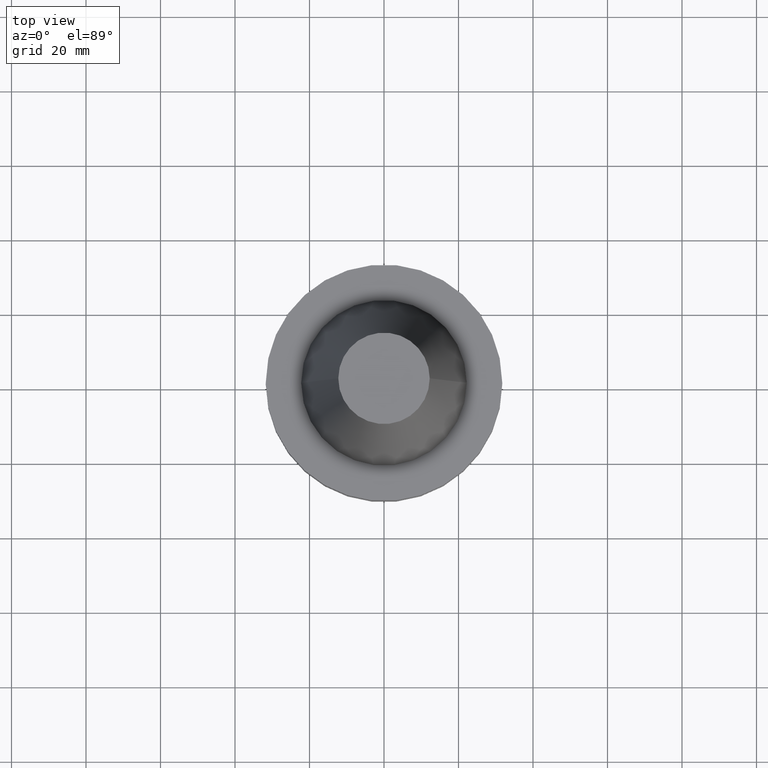
[diagram: clean part render]
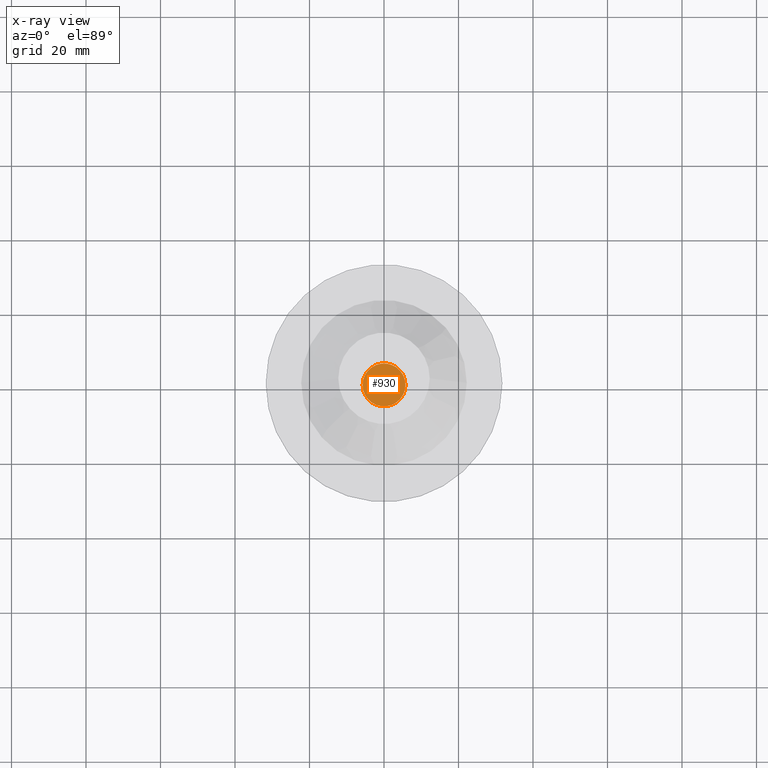
[diagram: x-ray — body ghosted, one internal face saturated and labeled with its STEP entity id]
A machine part, top view, then the same camera in x-ray: the body is ghosted and one INTERNAL B-rep face — a face not visible from any outside direction — is saturated and labeled: STEP entity #930.
In plain terms, the highlighted planar face has unit normal (0, -0, 1).
Its self-contained STEP definition (entity closure, byte-faithful):
#22 = EDGE_LOOP ( 'NONE', ( #138, #752 ) ) ;
#118 = CARTESIAN_POINT ( 'NONE',  ( -5.754999999999989235, 7.047842329093004936E-16, -35.04999999999999716 ) ) ;
#125 = EDGE_CURVE ( 'NONE', #948, #780, #253, .T. ) ;
#126 = PLANE ( 'NONE',  #510 ) ;
#134 = CARTESIAN_POINT ( 'NONE',  ( 5.754999999999989235, 0.000000000000000000, -35.04999999999999716 ) ) ;
#138 = ORIENTED_EDGE ( 'NONE', *, *, #125, .F. ) ;
#253 = CIRCLE ( 'NONE', #612, 5.754999999999989235 ) ;
#332 = DIRECTION ( 'NONE',  ( -0.000000000000000000, -0.000000000000000000, 1.000000000000000000 ) ) ;
#372 = DIRECTION ( 'NONE',  ( 1.000000000000000000, 0.000000000000000000, 0.000000000000000000 ) ) ;
#377 = EDGE_CURVE ( 'NONE', #780, #948, #436, .T. ) ;
#436 = CIRCLE ( 'NONE', #473, 5.754999999999989235 ) ;
#473 = AXIS2_PLACEMENT_3D ( 'NONE', #974, #721, #372 ) ;
#510 = AXIS2_PLACEMENT_3D ( 'NONE', #813, #896, #631 ) ;
#612 = AXIS2_PLACEMENT_3D ( 'NONE', #669, #332, #838 ) ;
#631 = DIRECTION ( 'NONE',  ( 1.000000000000000000, 0.000000000000000000, 0.000000000000000000 ) ) ;
#669 = CARTESIAN_POINT ( 'NONE',  ( 0.000000000000000000, 0.000000000000000000, -35.04999999999999716 ) ) ;
#721 = DIRECTION ( 'NONE',  ( -0.000000000000000000, -0.000000000000000000, 1.000000000000000000 ) ) ;
#752 = ORIENTED_EDGE ( 'NONE', *, *, #377, .F. ) ;
#780 = VERTEX_POINT ( 'NONE', #118 ) ;
#813 = CARTESIAN_POINT ( 'NONE',  ( 0.000000000000000000, 22.22499999999999787, -35.04999999999999716 ) ) ;
#838 = DIRECTION ( 'NONE',  ( 1.000000000000000000, 0.000000000000000000, 0.000000000000000000 ) ) ;
#896 = DIRECTION ( 'NONE',  ( 0.000000000000000000, -0.000000000000000000, 1.000000000000000000 ) ) ;
#930 = ADVANCED_FACE ( 'NONE', ( #1043 ), #126, .F. ) ;
#948 = VERTEX_POINT ( 'NONE', #134 ) ;
#974 = CARTESIAN_POINT ( 'NONE',  ( 0.000000000000000000, 0.000000000000000000, -35.04999999999999716 ) ) ;
#1043 = FACE_OUTER_BOUND ( 'NONE', #22, .T. ) ;